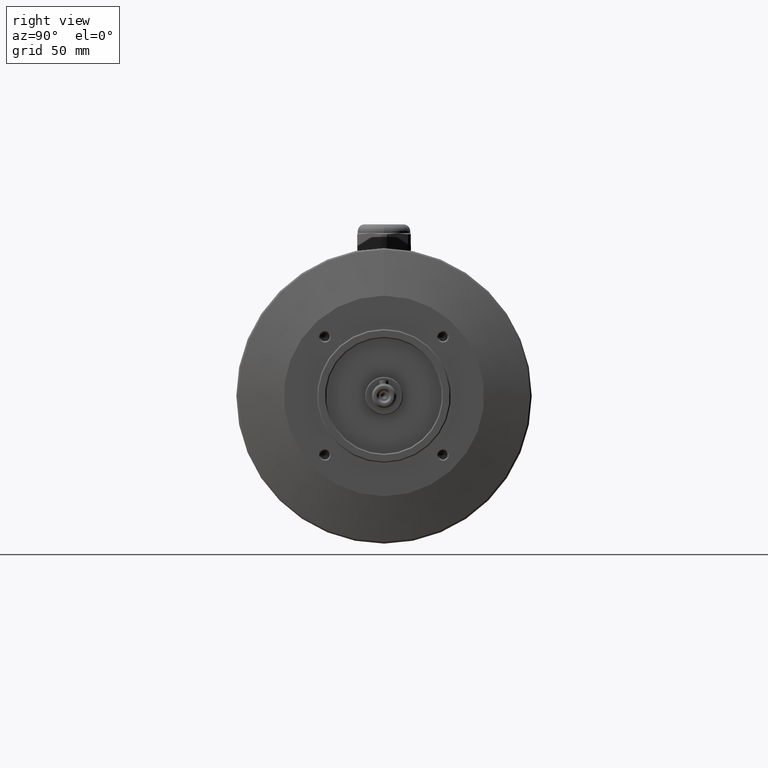
[diagram: clean part render]
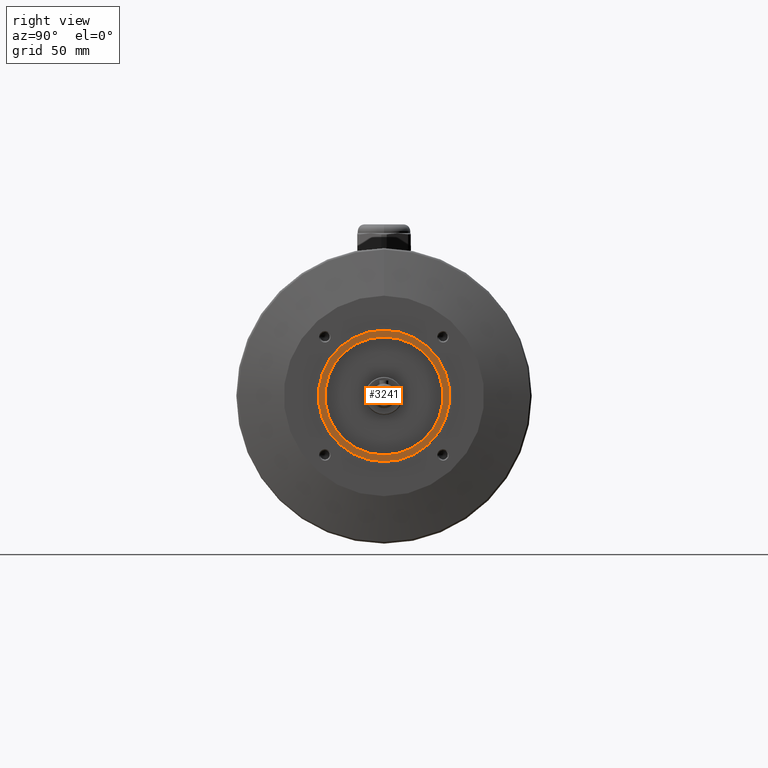
[diagram: same view with one face highlighted and labeled with its STEP entity id]
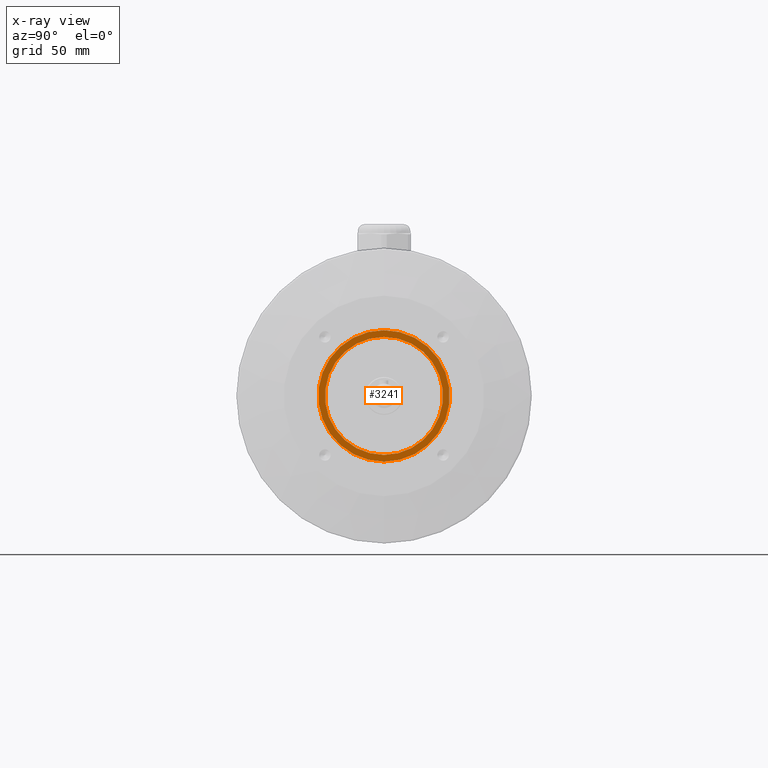
[diagram: x-ray of the same camera — body ghosted, the highlighted face saturated]
A machine part, right view. The second image highlights one B-rep face of the part: STEP entity #3241.
The next image is the same camera in x-ray: the body ghosted, the highlighted face saturated — about 0% of this face is hidden behind the body in this view.
In plain terms, the highlighted planar face has unit normal (1, 0, 0).
Its self-contained STEP definition (entity closure, byte-faithful):
#84=PLANE('',#3453);
#514=ORIENTED_EDGE('',*,*,#1052,.T.);
#515=ORIENTED_EDGE('',*,*,#1053,.T.);
#1052=EDGE_CURVE('',#1323,#1323,#1505,.T.);
#1053=EDGE_CURVE('',#1324,#1324,#1506,.F.);
#1323=VERTEX_POINT('',#4558);
#1324=VERTEX_POINT('',#4560);
#1505=CIRCLE('',#3454,29.5);
#1506=CIRCLE('',#3455,26.5);
#1622=EDGE_LOOP('',(#514));
#1623=EDGE_LOOP('',(#515));
#1865=FACE_BOUND('',#1622,.T.);
#1866=FACE_BOUND('',#1623,.T.);
#3241=ADVANCED_FACE('',(#1865,#1866),#84,.T.);
#3453=AXIS2_PLACEMENT_3D('',#4556,#3838,#3839);
#3454=AXIS2_PLACEMENT_3D('',#4557,#3840,#3841);
#3455=AXIS2_PLACEMENT_3D('',#4559,#3842,#3843);
#3838=DIRECTION('',(1.,0.,0.));
#3839=DIRECTION('',(0.,0.,-1.));
#3840=DIRECTION('',(1.,0.,0.));
#3841=DIRECTION('',(0.,0.,-1.));
#3842=DIRECTION('',(1.,0.,0.));
#3843=DIRECTION('',(0.,0.,-1.));
#4556=CARTESIAN_POINT('',(2.49999999999998,0.,30.));
#4557=CARTESIAN_POINT('',(2.49999999999998,0.,0.));
#4558=CARTESIAN_POINT('',(2.49999999999998,0.,-29.5));
#4559=CARTESIAN_POINT('',(2.49999999999998,0.,0.));
#4560=CARTESIAN_POINT('',(2.49999999999998,0.,-26.5));